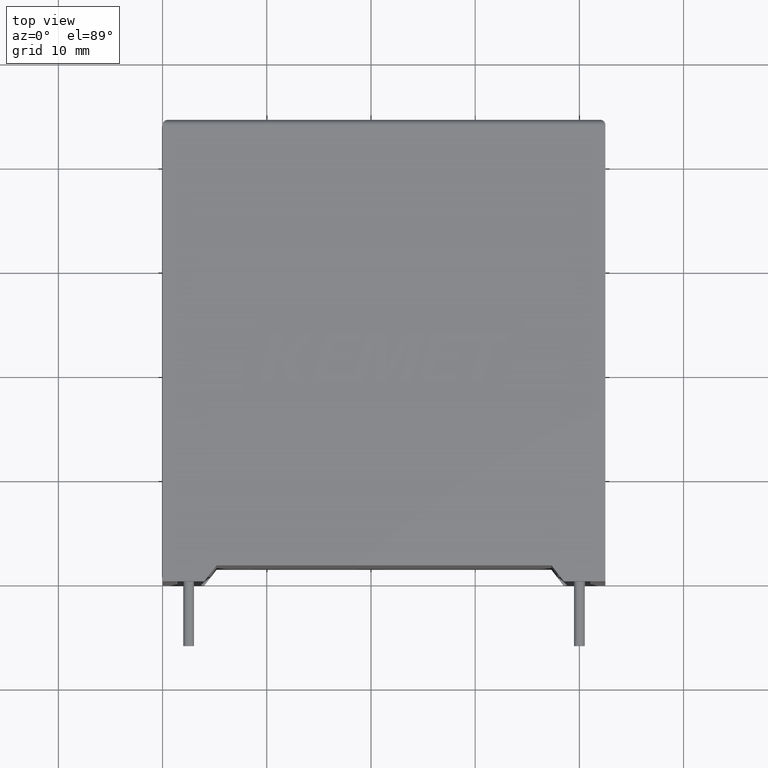
[diagram: clean part render]
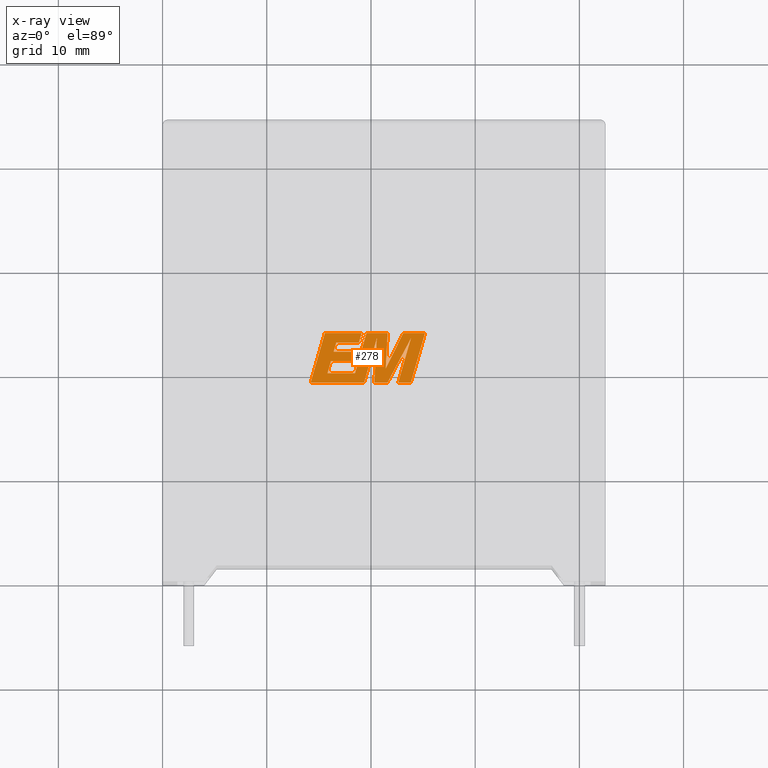
[diagram: x-ray — body ghosted, one internal face saturated and labeled with its STEP entity id]
A machine part, top view, then the same camera in x-ray: the body is ghosted and one INTERNAL B-rep face — a face not visible from any outside direction — is saturated and labeled: STEP entity #278.
In plain terms, the highlighted planar face has unit normal (0, 0, -1).
Its self-contained STEP definition (entity closure, byte-faithful):
#7 = EDGE_CURVE ( 'NONE', #1151, #597, #522, .T. ) ;
#16 = DIRECTION ( 'NONE',  ( 1.000000000000000000, 0.000000000000000000, 0.000000000000000000 ) ) ;
#17 = VECTOR ( 'NONE', #762, 1000.000000000000114 ) ;
#22 = CARTESIAN_POINT ( 'NONE',  ( 21.58749068439867003, 19.06228999999985163, 24.30000000000000071 ) ) ;
#28 = EDGE_CURVE ( 'NONE', #1665, #1019, #984, .T. ) ;
#130 = ORIENTED_EDGE ( 'NONE', *, *, #28, .F. ) ;
#137 = CARTESIAN_POINT ( 'NONE',  ( 18.84002523824400654, 22.91653752119812637, 24.30000000000000071 ) ) ;
#154 = ORIENTED_EDGE ( 'NONE', *, *, #2845, .F. ) ;
#156 = EDGE_CURVE ( 'NONE', #2246, #1920, #2892, .T. ) ;
#164 = CARTESIAN_POINT ( 'NONE',  ( 16.67115792487504322, 22.91653752119812637, 24.30000000000000071 ) ) ;
#165 = CARTESIAN_POINT ( 'NONE',  ( 18.46421290974284801, 19.96795081471593036, 24.30000000000000071 ) ) ;
#197 = CARTESIAN_POINT ( 'NONE',  ( 19.57219635302091021, 23.82264704111950238, 24.30000000000000071 ) ) ;
#208 = CARTESIAN_POINT ( 'NONE',  ( 23.83553275654092829, 23.32071959870588529, 24.30000000000000071 ) ) ;
#230 = DIRECTION ( 'NONE',  ( 0.000000000000000000, 0.000000000000000000, -1.000000000000000000 ) ) ;
#251 = VERTEX_POINT ( 'NONE', #1333 ) ;
#278 = ADVANCED_FACE ( 'NONE', ( #1876 ), #1409, .T. ) ;
#288 = DIRECTION ( 'NONE',  ( 1.000000000000000000, 0.000000000000000000, 0.000000000000000000 ) ) ;
#292 = DIRECTION ( 'NONE',  ( 0.2746459304916892830, 0.9615454294334481178, 0.000000000000000000 ) ) ;
#326 = VECTOR ( 'NONE', #2916, 1000.000000000000000 ) ;
#333 = LINE ( 'NONE', #2202, #2079 ) ;
#337 = EDGE_LOOP ( 'NONE', ( #154, #665, #130, #641, #606, #885, #2652, #1667, #1081, #1438, #2291, #1746, #2818, #1647, #2612, #2893, #391, #346, #2801, #365, #2624, #2034, #2752 ) ) ;
#346 = ORIENTED_EDGE ( 'NONE', *, *, #1105, .F. ) ;
#349 = CARTESIAN_POINT ( 'NONE',  ( 23.83553275654092829, 23.32071959870588529, 24.30000000000000071 ) ) ;
#350 = EDGE_CURVE ( 'NONE', #2348, #251, #957, .T. ) ;
#360 = CARTESIAN_POINT ( 'NONE',  ( 23.82233213862508237, 19.06228999999985163, 24.30000000000000071 ) ) ;
#365 = ORIENTED_EDGE ( 'NONE', *, *, #1675, .F. ) ;
#367 = VECTOR ( 'NONE', #288, 1000.000000000000000 ) ;
#391 = ORIENTED_EDGE ( 'NONE', *, *, #476, .F. ) ;
#393 = EDGE_CURVE ( 'NONE', #1920, #2986, #1006, .T. ) ;
#397 = LINE ( 'NONE', #2722, #663 ) ;
#401 = CARTESIAN_POINT ( 'NONE',  ( 15.82533412162220543, 19.96795081471593036, 24.30000000000000071 ) ) ;
#459 = CARTESIAN_POINT ( 'NONE',  ( 18.49178656508090057, 19.06228999999985163, 24.30000000000000071 ) ) ;
#476 = EDGE_CURVE ( 'NONE', #785, #2911, #2500, .T. ) ;
#482 = VECTOR ( 'NONE', #2323, 1000.000000000000000 ) ;
#522 = LINE ( 'NONE', #2342, #1304 ) ;
#535 = LINE ( 'NONE', #1683, #17 ) ;
#549 = VERTEX_POINT ( 'NONE', #349 ) ;
#569 = EDGE_CURVE ( 'NONE', #1664, #1127, #397, .T. ) ;
#589 = DIRECTION ( 'NONE',  ( -1.000000000000000000, 0.000000000000000000, 0.000000000000000000 ) ) ;
#596 = CARTESIAN_POINT ( 'NONE',  ( 25.19096988827342543, 23.82264704111950238, 24.30000000000000071 ) ) ;
#597 = VERTEX_POINT ( 'NONE', #834 ) ;
#606 = ORIENTED_EDGE ( 'NONE', *, *, #2154, .F. ) ;
#630 = VECTOR ( 'NONE', #2913, 1000.000000000000000 ) ;
#641 = ORIENTED_EDGE ( 'NONE', *, *, #2068, .F. ) ;
#661 = EDGE_CURVE ( 'NONE', #2986, #1828, #2569, .T. ) ;
#663 = VECTOR ( 'NONE', #2022, 1000.000000000000000 ) ;
#665 = ORIENTED_EDGE ( 'NONE', *, *, #1895, .F. ) ;
#699 = DIRECTION ( 'NONE',  ( -0.2760118818968580467, -0.9611542233438683525, 0.000000000000000000 ) ) ;
#705 = CARTESIAN_POINT ( 'NONE',  ( 21.58749068439867003, 19.06228999999985163, 24.30000000000000071 ) ) ;
#714 = CARTESIAN_POINT ( 'NONE',  ( -0.5166956838446156164, 3.654561789267356975, 24.30000000000000071 ) ) ;
#747 = LINE ( 'NONE', #22, #2988 ) ;
#762 = DIRECTION ( 'NONE',  ( 0.2793947940878294678, 0.9601763114327593884, 0.000000000000000000 ) ) ;
#763 = LINE ( 'NONE', #789, #630 ) ;
#785 = VERTEX_POINT ( 'NONE', #948 ) ;
#789 = CARTESIAN_POINT ( 'NONE',  ( 23.82233213862508237, 19.06228999999985163, 24.30000000000000071 ) ) ;
#834 = CARTESIAN_POINT ( 'NONE',  ( 18.84002523824400654, 22.91653752119812637, 24.30000000000000071 ) ) ;
#848 = LINE ( 'NONE', #401, #2326 ) ;
#864 = EDGE_CURVE ( 'NONE', #2921, #1151, #535, .T. ) ;
#868 = CARTESIAN_POINT ( 'NONE',  ( 20.55597529427410208, 23.30031074864782781, 24.30000000000000071 ) ) ;
#882 = CARTESIAN_POINT ( 'NONE',  ( 18.20535342421084835, 21.15108514417270058, 24.30000000000000071 ) ) ;
#885 = ORIENTED_EDGE ( 'NONE', *, *, #2298, .F. ) ;
#946 = LINE ( 'NONE', #1366, #2537 ) ;
#948 = CARTESIAN_POINT ( 'NONE',  ( 16.16244200679171428, 21.15108514417270058, 24.30000000000000071 ) ) ;
#957 = LINE ( 'NONE', #1668, #1008 ) ;
#984 = LINE ( 'NONE', #1627, #367 ) ;
#1006 = LINE ( 'NONE', #1223, #2217 ) ;
#1008 = VECTOR ( 'NONE', #2132, 1000.000000000000114 ) ;
#1019 = VERTEX_POINT ( 'NONE', #360 ) ;
#1041 = CARTESIAN_POINT ( 'NONE',  ( 18.45671519037015074, 22.03111186421948631, 24.30000000000000071 ) ) ;
#1058 = CARTESIAN_POINT ( 'NONE',  ( 23.10310966654352427, 23.82264704111950238, 24.30000000000000071 ) ) ;
#1061 = CARTESIAN_POINT ( 'NONE',  ( 23.10310966654352427, 23.82264704111950238, 24.30000000000000071 ) ) ;
#1070 = DIRECTION ( 'NONE',  ( -0.05596501978069369498, -0.9984327301130239141, 0.000000000000000000 ) ) ;
#1071 = CARTESIAN_POINT ( 'NONE',  ( 16.41351428571622151, 22.03111186421948631, 24.30000000000000071 ) ) ;
#1081 = ORIENTED_EDGE ( 'NONE', *, *, #2626, .F. ) ;
#1098 = AXIS2_PLACEMENT_3D ( 'NONE', #714, #230, #1652 ) ;
#1105 = EDGE_CURVE ( 'NONE', #1127, #785, #848, .T. ) ;
#1127 = VERTEX_POINT ( 'NONE', #2730 ) ;
#1151 = VERTEX_POINT ( 'NONE', #164 ) ;
#1155 = VERTEX_POINT ( 'NONE', #2627 ) ;
#1163 = VECTOR ( 'NONE', #2871, 1000.000000000000000 ) ;
#1207 = CARTESIAN_POINT ( 'NONE',  ( 20.31842206922886263, 19.06228999999985163, 24.30000000000000071 ) ) ;
#1217 = VECTOR ( 'NONE', #292, 1000.000000000000000 ) ;
#1219 = VECTOR ( 'NONE', #1388, 1000.000000000000000 ) ;
#1223 = CARTESIAN_POINT ( 'NONE',  ( 21.41639428189204253, 20.42178680785994160, 24.30000000000000071 ) ) ;
#1279 = EDGE_CURVE ( 'NONE', #2719, #2921, #333, .T. ) ;
#1304 = VECTOR ( 'NONE', #16, 1000.000000000000000 ) ;
#1333 = CARTESIAN_POINT ( 'NONE',  ( 14.21074801331812587, 19.06228999999985163, 24.30000000000000071 ) ) ;
#1362 = VECTOR ( 'NONE', #2241, 1000.000000000000000 ) ;
#1366 = CARTESIAN_POINT ( 'NONE',  ( 19.33911570193592411, 19.06228999999985163, 24.30000000000000071 ) ) ;
#1388 = DIRECTION ( 'NONE',  ( 1.000000000000000000, 0.000000000000000000, 0.000000000000000000 ) ) ;
#1409 = PLANE ( 'NONE',  #1098 ) ;
#1438 = ORIENTED_EDGE ( 'NONE', *, *, #350, .F. ) ;
#1525 = LINE ( 'NONE', #2948, #1362 ) ;
#1526 = CARTESIAN_POINT ( 'NONE',  ( 18.20535342421084835, 21.15108514417270058, 24.30000000000000071 ) ) ;
#1549 = CARTESIAN_POINT ( 'NONE',  ( 16.16244200679171428, 21.15108514417270058, 24.30000000000000071 ) ) ;
#1581 = CARTESIAN_POINT ( 'NONE',  ( 19.33911570193592411, 19.06228999999985163, 24.30000000000000071 ) ) ;
#1593 = VECTOR ( 'NONE', #2346, 1000.000000000000000 ) ;
#1623 = LINE ( 'NONE', #882, #1217 ) ;
#1627 = CARTESIAN_POINT ( 'NONE',  ( 22.61265182971632015, 19.06228999999985163, 24.30000000000000071 ) ) ;
#1633 = EDGE_CURVE ( 'NONE', #2391, #1807, #2757, .T. ) ;
#1647 = ORIENTED_EDGE ( 'NONE', *, *, #864, .F. ) ;
#1652 = DIRECTION ( 'NONE',  ( -1.000000000000000000, 0.000000000000000000, 0.000000000000000000 ) ) ;
#1664 = VERTEX_POINT ( 'NONE', #165 ) ;
#1665 = VERTEX_POINT ( 'NONE', #2263 ) ;
#1667 = ORIENTED_EDGE ( 'NONE', *, *, #2971, .F. ) ;
#1668 = CARTESIAN_POINT ( 'NONE',  ( 15.58058713881453095, 23.82264704111950238, 24.30000000000000071 ) ) ;
#1675 = EDGE_CURVE ( 'NONE', #1828, #1664, #1525, .T. ) ;
#1683 = CARTESIAN_POINT ( 'NONE',  ( 16.41351428571622151, 22.03111186421948631, 24.30000000000000071 ) ) ;
#1684 = CARTESIAN_POINT ( 'NONE',  ( 21.41639428189204253, 20.42178680785994160, 24.30000000000000071 ) ) ;
#1746 = ORIENTED_EDGE ( 'NONE', *, *, #2899, .F. ) ;
#1807 = VERTEX_POINT ( 'NONE', #1207 ) ;
#1828 = VERTEX_POINT ( 'NONE', #197 ) ;
#1866 = CARTESIAN_POINT ( 'NONE',  ( 21.59946400144825063, 23.82264704111950238, 24.30000000000000071 ) ) ;
#1876 = FACE_OUTER_BOUND ( 'NONE', #337, .T. ) ;
#1895 = EDGE_CURVE ( 'NONE', #1019, #2885, #763, .T. ) ;
#1920 = VERTEX_POINT ( 'NONE', #1684 ) ;
#2022 = DIRECTION ( 'NONE',  ( -1.000000000000000000, 0.000000000000000000, 0.000000000000000000 ) ) ;
#2034 = ORIENTED_EDGE ( 'NONE', *, *, #393, .F. ) ;
#2068 = EDGE_CURVE ( 'NONE', #549, #1665, #2603, .T. ) ;
#2079 = VECTOR ( 'NONE', #589, 1000.000000000000000 ) ;
#2107 = LINE ( 'NONE', #459, #482 ) ;
#2132 = DIRECTION ( 'NONE',  ( -0.2765379750249963298, -0.9610029908221277006, 0.000000000000000000 ) ) ;
#2154 = EDGE_CURVE ( 'NONE', #3016, #549, #747, .T. ) ;
#2183 = VECTOR ( 'NONE', #2918, 1000.000000000000114 ) ;
#2191 = VECTOR ( 'NONE', #699, 1000.000000000000114 ) ;
#2192 = CARTESIAN_POINT ( 'NONE',  ( 15.58058713881453095, 23.82264704111950238, 24.30000000000000071 ) ) ;
#2202 = CARTESIAN_POINT ( 'NONE',  ( 18.45671519037015074, 22.03111186421948631, 24.30000000000000071 ) ) ;
#2209 = LINE ( 'NONE', #596, #326 ) ;
#2215 = DIRECTION ( 'NONE',  ( 1.000000000000000000, 0.000000000000000000, 0.000000000000000000 ) ) ;
#2217 = VECTOR ( 'NONE', #2898, 1000.000000000000000 ) ;
#2241 = DIRECTION ( 'NONE',  ( -0.2762517575166416606, -0.9610853065513833560, 0.000000000000000000 ) ) ;
#2242 = LINE ( 'NONE', #137, #2440 ) ;
#2246 = VERTEX_POINT ( 'NONE', #1061 ) ;
#2263 = CARTESIAN_POINT ( 'NONE',  ( 22.61265182971632015, 19.06228999999985163, 24.30000000000000071 ) ) ;
#2291 = ORIENTED_EDGE ( 'NONE', *, *, #2360, .F. ) ;
#2298 = EDGE_CURVE ( 'NONE', #1807, #3016, #2458, .T. ) ;
#2323 = DIRECTION ( 'NONE',  ( 1.000000000000000000, 0.000000000000000000, 0.000000000000000000 ) ) ;
#2326 = VECTOR ( 'NONE', #2477, 1000.000000000000114 ) ;
#2329 = CARTESIAN_POINT ( 'NONE',  ( 21.59946400144825063, 23.82264704111950238, 24.30000000000000071 ) ) ;
#2342 = CARTESIAN_POINT ( 'NONE',  ( 16.67115792487504322, 22.91653752119812637, 24.30000000000000071 ) ) ;
#2346 = DIRECTION ( 'NONE',  ( -1.000000000000000000, 0.000000000000000000, 0.000000000000000000 ) ) ;
#2348 = VERTEX_POINT ( 'NONE', #2192 ) ;
#2360 = EDGE_CURVE ( 'NONE', #1155, #2348, #2406, .T. ) ;
#2391 = VERTEX_POINT ( 'NONE', #2906 ) ;
#2406 = LINE ( 'NONE', #2442, #1163 ) ;
#2440 = VECTOR ( 'NONE', #2685, 999.9999999999998863 ) ;
#2442 = CARTESIAN_POINT ( 'NONE',  ( 19.09737939016829245, 23.82264704111950238, 24.30000000000000071 ) ) ;
#2458 = LINE ( 'NONE', #3000, #1219 ) ;
#2477 = DIRECTION ( 'NONE',  ( 0.2740217765954066076, 0.9617234872620595842, 0.000000000000000000 ) ) ;
#2500 = LINE ( 'NONE', #1549, #2515 ) ;
#2515 = VECTOR ( 'NONE', #2215, 1000.000000000000000 ) ;
#2537 = VECTOR ( 'NONE', #2797, 1000.000000000000227 ) ;
#2569 = LINE ( 'NONE', #2329, #1593 ) ;
#2603 = LINE ( 'NONE', #208, #2191 ) ;
#2612 = ORIENTED_EDGE ( 'NONE', *, *, #1279, .F. ) ;
#2624 = ORIENTED_EDGE ( 'NONE', *, *, #661, .F. ) ;
#2626 = EDGE_CURVE ( 'NONE', #251, #2965, #2107, .T. ) ;
#2627 = CARTESIAN_POINT ( 'NONE',  ( 19.09737939016829245, 23.82264704111950238, 24.30000000000000071 ) ) ;
#2652 = ORIENTED_EDGE ( 'NONE', *, *, #1633, .F. ) ;
#2663 = DIRECTION ( 'NONE',  ( 0.4668459304955080436, 0.8843386665637680277, 0.000000000000000000 ) ) ;
#2684 = VECTOR ( 'NONE', #1070, 1000.000000000000114 ) ;
#2685 = DIRECTION ( 'NONE',  ( 0.2732148821746286926, 0.9619530280415483636, 0.000000000000000000 ) ) ;
#2703 = CARTESIAN_POINT ( 'NONE',  ( 25.19096988827342543, 23.82264704111950238, 24.30000000000000071 ) ) ;
#2719 = VERTEX_POINT ( 'NONE', #1041 ) ;
#2722 = CARTESIAN_POINT ( 'NONE',  ( 18.46421290974284801, 19.96795081471593036, 24.30000000000000071 ) ) ;
#2730 = CARTESIAN_POINT ( 'NONE',  ( 15.82533412162220543, 19.96795081471593036, 24.30000000000000071 ) ) ;
#2752 = ORIENTED_EDGE ( 'NONE', *, *, #156, .F. ) ;
#2757 = LINE ( 'NONE', #868, #2684 ) ;
#2797 = DIRECTION ( 'NONE',  ( 0.2759782365590697228, 0.9611638845408966292, 0.000000000000000000 ) ) ;
#2801 = ORIENTED_EDGE ( 'NONE', *, *, #569, .F. ) ;
#2818 = ORIENTED_EDGE ( 'NONE', *, *, #7, .F. ) ;
#2845 = EDGE_CURVE ( 'NONE', #2885, #2246, #2209, .T. ) ;
#2871 = DIRECTION ( 'NONE',  ( -1.000000000000000000, 0.000000000000000000, 0.000000000000000000 ) ) ;
#2885 = VERTEX_POINT ( 'NONE', #2703 ) ;
#2892 = LINE ( 'NONE', #1058, #2183 ) ;
#2893 = ORIENTED_EDGE ( 'NONE', *, *, #2994, .F. ) ;
#2898 = DIRECTION ( 'NONE',  ( 0.05375259206908577364, 0.9985542843760946141, 0.000000000000000000 ) ) ;
#2899 = EDGE_CURVE ( 'NONE', #597, #1155, #2242, .T. ) ;
#2906 = CARTESIAN_POINT ( 'NONE',  ( 20.55597529427410208, 23.30031074864782781, 24.30000000000000071 ) ) ;
#2911 = VERTEX_POINT ( 'NONE', #1526 ) ;
#2913 = DIRECTION ( 'NONE',  ( 0.2763139702539113007, 0.9610674221107073922, 0.000000000000000000 ) ) ;
#2916 = DIRECTION ( 'NONE',  ( -1.000000000000000000, 0.000000000000000000, 0.000000000000000000 ) ) ;
#2918 = DIRECTION ( 'NONE',  ( -0.4443210308329518798, -0.8958676361826801715, 0.000000000000000000 ) ) ;
#2921 = VERTEX_POINT ( 'NONE', #1071 ) ;
#2948 = CARTESIAN_POINT ( 'NONE',  ( 19.57219635302091021, 23.82264704111950238, 24.30000000000000071 ) ) ;
#2965 = VERTEX_POINT ( 'NONE', #1581 ) ;
#2971 = EDGE_CURVE ( 'NONE', #2965, #2391, #946, .T. ) ;
#2986 = VERTEX_POINT ( 'NONE', #1866 ) ;
#2988 = VECTOR ( 'NONE', #2663, 1000.000000000000000 ) ;
#2994 = EDGE_CURVE ( 'NONE', #2911, #2719, #1623, .T. ) ;
#3000 = CARTESIAN_POINT ( 'NONE',  ( 20.31842206922886263, 19.06228999999985163, 24.30000000000000071 ) ) ;
#3016 = VERTEX_POINT ( 'NONE', #705 ) ;